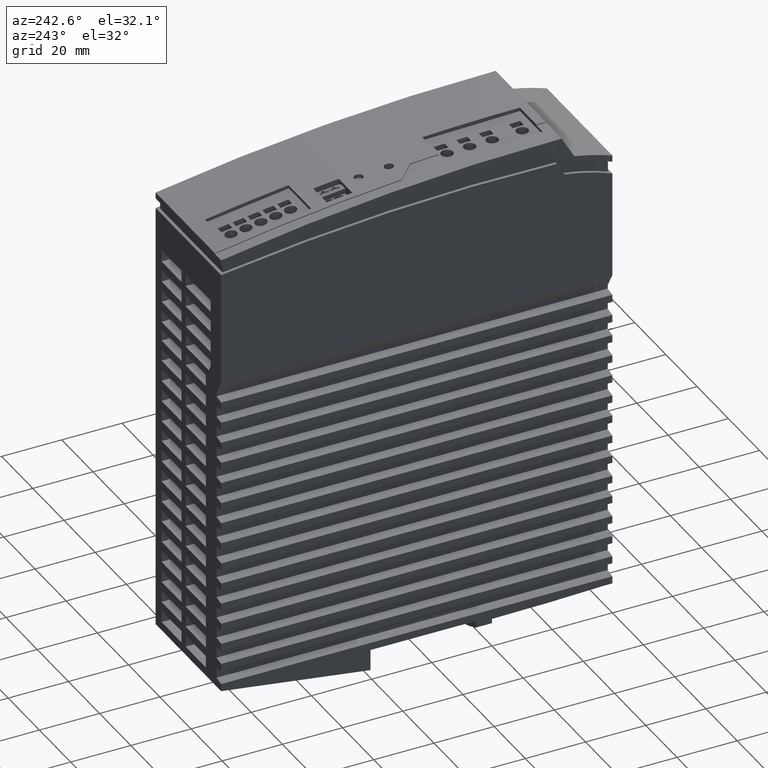
[diagram: clean part render]
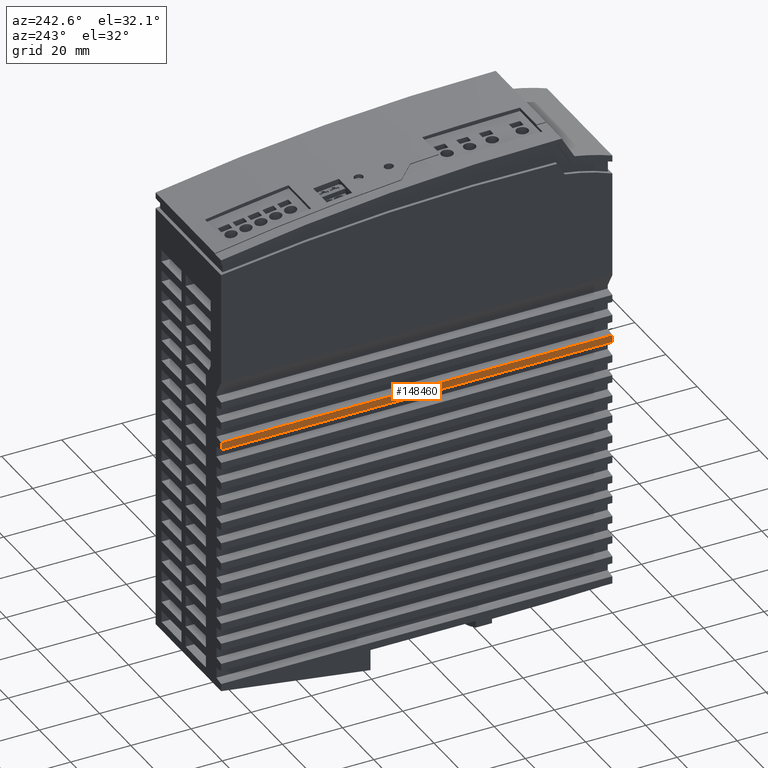
[diagram: same view with one face highlighted and labeled with its STEP entity id]
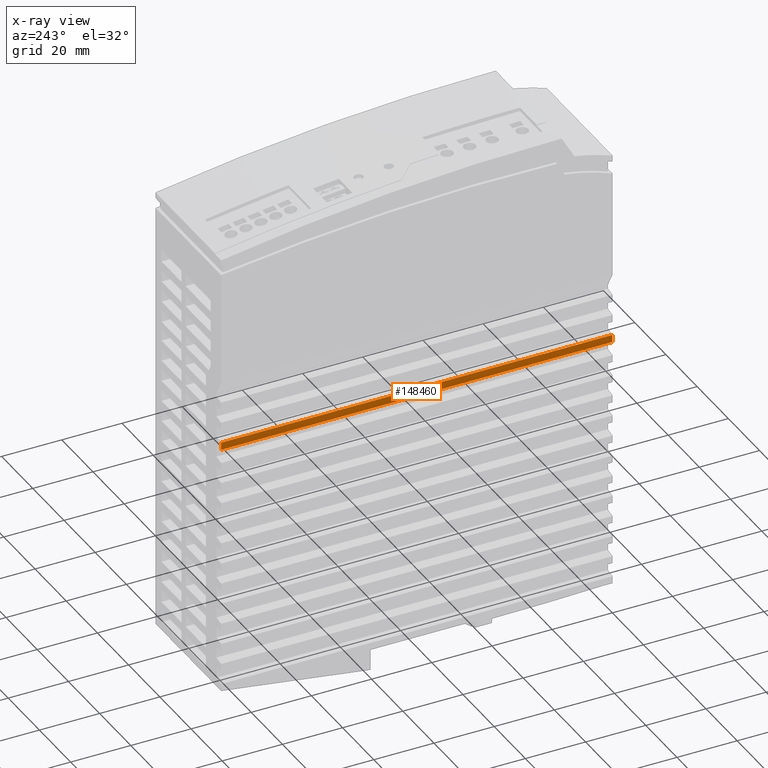
[diagram: x-ray of the same camera — body ghosted, the highlighted face saturated]
A machine part, auxiliary view. The second image highlights one B-rep face of the part: STEP entity #148460.
The next image is the same camera in x-ray: the body ghosted, the highlighted face saturated — about 0% of this face is hidden behind the body in this view.
In plain terms, the highlighted planar face has unit normal (-1, 0, 0).
Its self-contained STEP definition (entity closure, byte-faithful):
#18800=CARTESIAN_POINT('',(128.90472881771,130.,-8.5));
#18810=DIRECTION('',(-1.,0.,0.));
#18820=VECTOR('',#18810,1.);
#18830=LINE('',#18800,#18820);
#18980=CARTESIAN_POINT('',(128.90472881771,0.,-8.5));
#18990=DIRECTION('',(-1.,0.,0.));
#19000=VECTOR('',#18990,1.);
#19010=LINE('',#18980,#19000);
#38070=CARTESIAN_POINT('',(86.4710190578743,130.,-8.5));
#38080=VERTEX_POINT('',#38070);
#38110=CARTESIAN_POINT('',(84.0155095289376,130.,-8.5));
#38120=VERTEX_POINT('',#38110);
#38130=EDGE_CURVE('',#38080,#38120,#18830,.T.);
#47380=CARTESIAN_POINT('',(1.5,65.000000000069,-8.5));
#47390=DIRECTION('',(-0.,0.,1.));
#47400=DIRECTION('',(0.,-1.,0.));
#47410=AXIS2_PLACEMENT_3D('',#47380,#47390,#47400);
#47420=PLANE('',#47410);
#50730=CARTESIAN_POINT('',(84.0155095289376,0.,-8.5));
#50740=VERTEX_POINT('',#50730);
#50840=CARTESIAN_POINT('',(84.0155095289376,64.9999998943551,-8.5));
#50850=DIRECTION('',(0.,-1.,0.));
#50860=VECTOR('',#50850,1.);
#50870=LINE('',#50840,#50860);
#50880=EDGE_CURVE('',#38120,#50740,#50870,.T.);
#53820=CARTESIAN_POINT('',(86.4710190578743,0.,-8.5));
#53830=VERTEX_POINT('',#53820);
#53860=CARTESIAN_POINT('',(86.4710190578743,64.9999998943551,-8.5));
#53870=DIRECTION('',(0.,1.,0.));
#53880=VECTOR('',#53870,1.);
#53890=LINE('',#53860,#53880);
#53900=EDGE_CURVE('',#53830,#38080,#53890,.T.);
#145350=EDGE_CURVE('',#53830,#50740,#19010,.T.);
#148400=ORIENTED_EDGE('',*,*,#53900,.T.);
#148410=ORIENTED_EDGE('',*,*,#145350,.F.);
#148420=ORIENTED_EDGE('',*,*,#50880,.T.);
#148430=ORIENTED_EDGE('',*,*,#38130,.T.);
#148440=EDGE_LOOP('',(#148430,#148420,#148410,#148400));
#148450=FACE_OUTER_BOUND('',#148440,.T.);
#148460=ADVANCED_FACE('',(#148450),#47420,.T.);